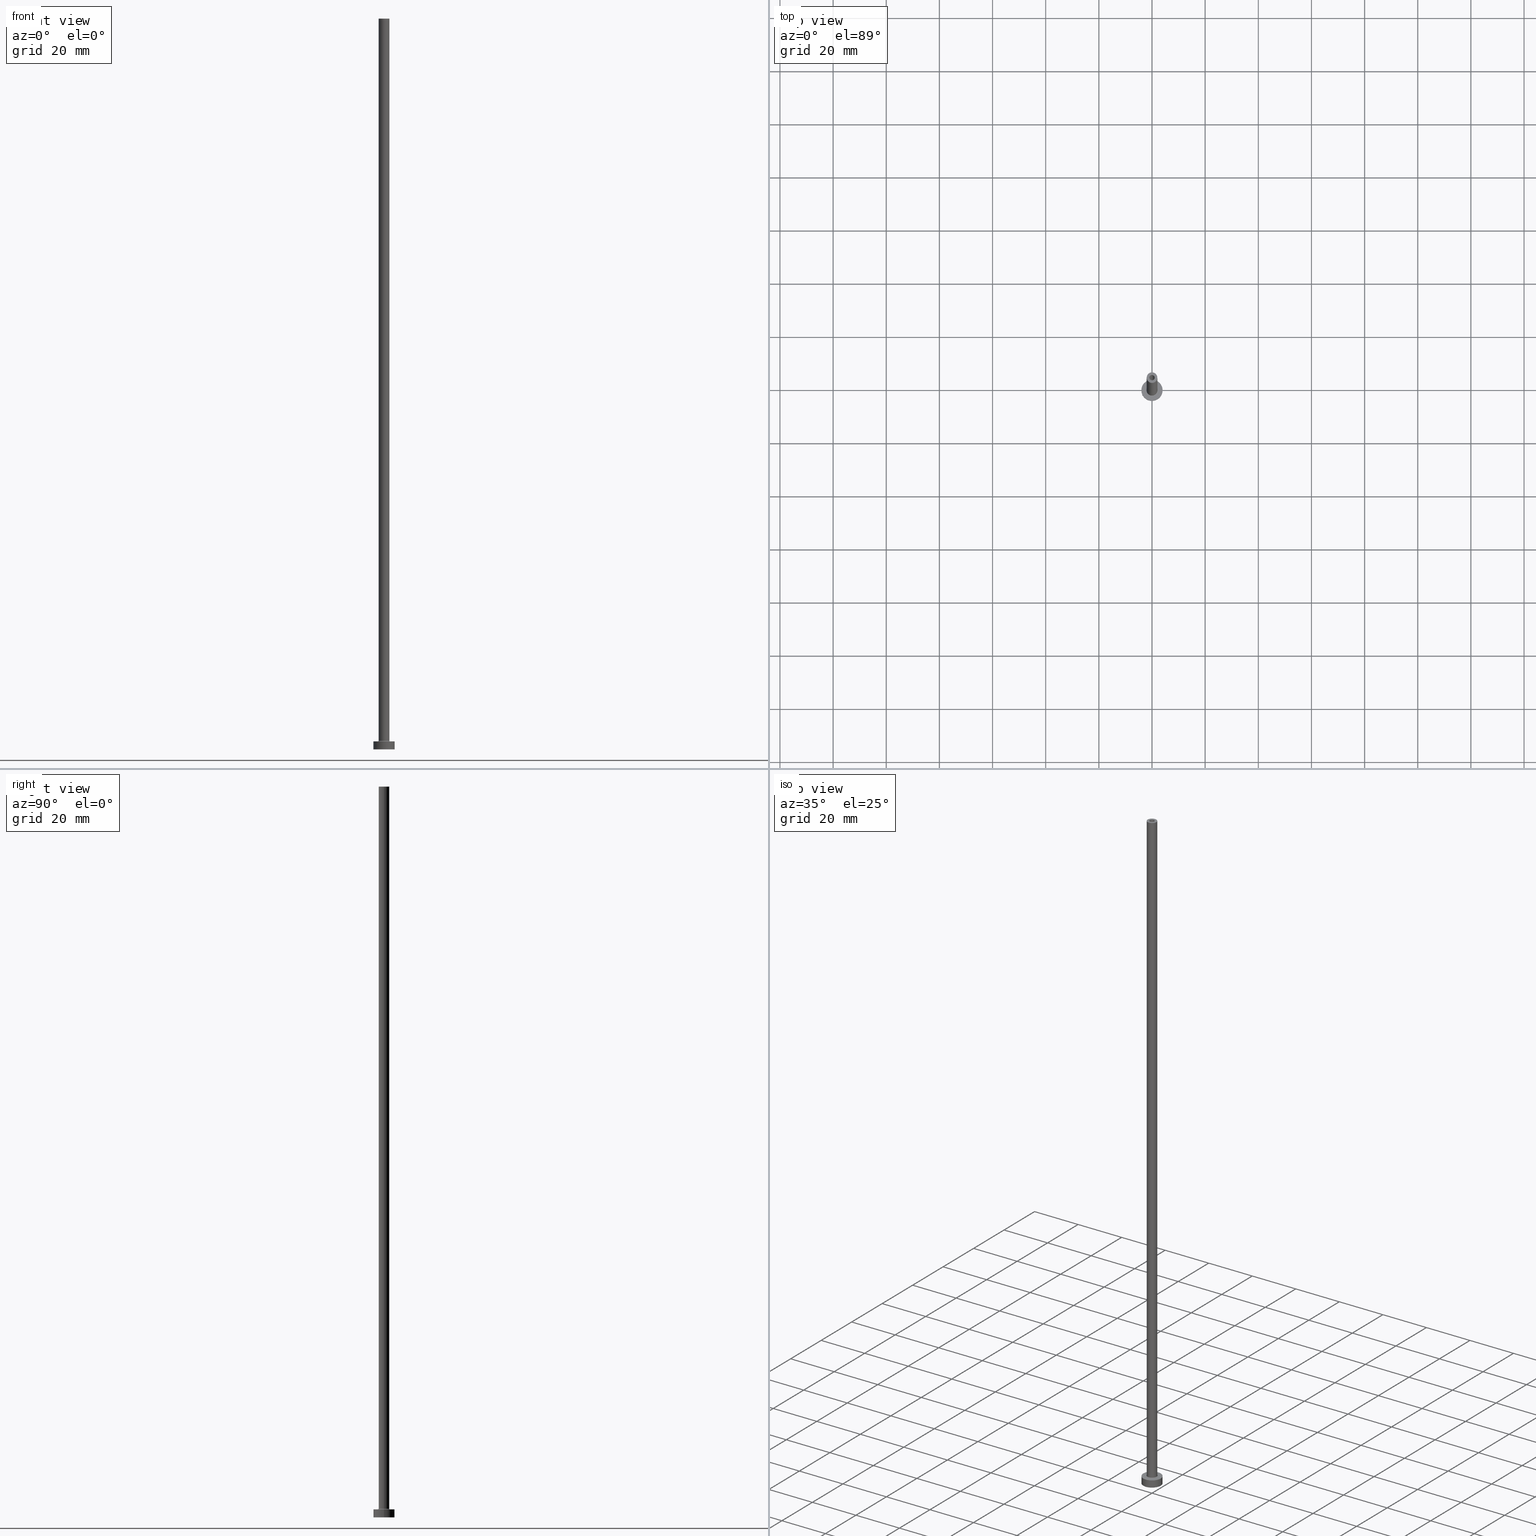
[diagram: canonical four-view strip — front | top / right | iso, engineering-drawing reading convention]
A machine part, canonical four-view strip (front | top / right | iso — engineering-drawing reading convention). The complete STEP part file that produces these views, byte-faithful:
ISO-10303-21;
HEADER;
FILE_DESCRIPTION (( 'STEP AP203' ),
    '1' );
FILE_NAME ('5d83.STEP',
    '2023-02-13T18:16:50',
    ( '' ),
    ( '' ),
    'SwSTEP 2.0',
    'SolidWorks 2019',
    '' );
FILE_SCHEMA (( 'CONFIG_CONTROL_DESIGN' ));
ENDSEC;

DATA;
#1 = AXIS2_PLACEMENT_3D ( 'NONE', #453, #115, #113 ) ;
#2 = EDGE_LOOP ( 'NONE', ( #135, #3 ) ) ;
#3 = ORIENTED_EDGE ( 'NONE', *, *, #459, .T. ) ;
#4 = ADVANCED_FACE ( 'NONE', ( #101 ), #95, .F. ) ;
#5 = SHAPE_DEFINITION_REPRESENTATION ( #7, #361 ) ;
#6 = DIRECTION ( 'NONE',  ( 0.000000000000000000, 0.000000000000000000, 1.000000000000000000 ) ) ;
#7 = PRODUCT_DEFINITION_SHAPE ( 'NONE', 'NONE',  #425 ) ;
#8 = DIRECTION ( 'NONE',  ( 1.000000000000000000, 0.000000000000000000, 0.000000000000000000 ) ) ;
#9 = DIRECTION ( 'NONE',  ( 1.000000000000000000, 0.000000000000000000, 0.000000000000000000 ) ) ;
#10 = EDGE_CURVE ( 'NONE', #313, #172, #398, .T. ) ;
#11 = DIRECTION ( 'NONE',  ( 0.000000000000000000, 0.000000000000000000, 1.000000000000000000 ) ) ;
#12 = COORDINATED_UNIVERSAL_TIME_OFFSET ( 1, 0, .AHEAD. ) ;
#13 = ORIENTED_EDGE ( 'NONE', *, *, #252, .F. ) ;
#14 = DIRECTION ( 'NONE',  ( 1.000000000000000000, 0.000000000000000000, 0.000000000000000000 ) ) ;
#15 = DIRECTION ( 'NONE',  ( 1.000000000000000000, 0.000000000000000000, 0.000000000000000000 ) ) ;
#16 = VERTEX_POINT ( 'NONE', #150 ) ;
#17 = APPROVAL_DATE_TIME ( #20, #211 ) ;
#18 = APPROVAL_PERSON_ORGANIZATION ( #216, #112, #214 ) ;
#19 = FACE_OUTER_BOUND ( 'NONE', #411, .T. ) ;
#20 = DATE_AND_TIME ( #89, #417 ) ;
#21 = DIRECTION ( 'NONE',  ( 0.000000000000000000, -1.000000000000000000, 0.000000000000000000 ) ) ;
#22 = EDGE_CURVE ( 'NONE', #395, #287, #254, .T. ) ;
#23 = VERTEX_POINT ( 'NONE', #461 ) ;
#24 = LINE ( 'NONE', #451, #331 ) ;
#25 = PERSON_AND_ORGANIZATION ( #178, #74 ) ;
#26 = ORIENTED_EDGE ( 'NONE', *, *, #110, .T. ) ;
#27 = DIRECTION ( 'NONE',  ( 0.000000000000000000, 0.000000000000000000, -1.000000000000000000 ) ) ;
#28 = ORIENTED_EDGE ( 'NONE', *, *, #379, .T. ) ;
#29 = LOCAL_TIME ( 19, 16, 50.00000000000000000, #108 ) ;
#30 = DIRECTION ( 'NONE',  ( -1.000000000000000000, 0.000000000000000000, 0.000000000000000000 ) ) ;
#31 = CARTESIAN_POINT ( 'NONE',  ( 2.299999999999999822, 0.000000000000000000, 3.000000000000012434 ) ) ;
#32 = ADVANCED_FACE ( 'NONE', ( #151 ), #111, .T. ) ;
#33 = DIRECTION ( 'NONE',  ( -1.000000000000000000, 0.000000000000000000, 0.000000000000000000 ) ) ;
#34 = DIRECTION ( 'NONE',  ( 0.000000000000000000, 0.000000000000000000, -1.000000000000000000 ) ) ;
#35 = VERTEX_POINT ( 'NONE', #68 ) ;
#36 = DIRECTION ( 'NONE',  ( 0.000000000000000000, 0.000000000000000000, 1.000000000000000000 ) ) ;
#37 = ORIENTED_EDGE ( 'NONE', *, *, #171, .T. ) ;
#38 = DIRECTION ( 'NONE',  ( 1.000000000000000000, 0.000000000000000000, 0.000000000000000000 ) ) ;
#39 = ORIENTED_EDGE ( 'NONE', *, *, #408, .T. ) ;
#40 = CC_DESIGN_PERSON_AND_ORGANIZATION_ASSIGNMENT ( #326, #219, ( #351 ) ) ;
#41 = PERSON_AND_ORGANIZATION ( #178, #74 ) ;
#42 = CALENDAR_DATE ( 2023, 13, 2 ) ;
#43 = AXIS2_PLACEMENT_3D ( 'NONE', #400, #52, #33 ) ;
#44 = CIRCLE ( 'NONE', #303, 0.2999999999999999334 ) ;
#45 = AXIS2_PLACEMENT_3D ( 'NONE', #190, #439, #343 ) ;
#46 = CARTESIAN_POINT ( 'NONE',  ( 0.000000000000000000, 0.000000000000000000, 3.000000000000000000 ) ) ;
#47 = ORIENTED_EDGE ( 'NONE', *, *, #200, .T. ) ;
#48 = LINE ( 'NONE', #369, #119 ) ;
#49 = EDGE_CURVE ( 'NONE', #287, #440, #396, .T. ) ;
#50 = ORIENTED_EDGE ( 'NONE', *, *, #78, .T. ) ;
#51 = ORIENTED_EDGE ( 'NONE', *, *, #286, .F. ) ;
#52 = DIRECTION ( 'NONE',  ( 0.000000000000000000, 0.000000000000000000, -1.000000000000000000 ) ) ;
#53 = LINE ( 'NONE', #161, #330 ) ;
#54 = DIRECTION ( 'NONE',  ( 0.000000000000000000, 0.000000000000000000, -1.000000000000000000 ) ) ;
#55 = CARTESIAN_POINT ( 'NONE',  ( 1.149999999999999911, 1.408343819019456028E-16, 0.000000000000000000 ) ) ;
#56 = CC_DESIGN_PERSON_AND_ORGANIZATION_ASSIGNMENT ( #25, #265, ( #83 ) ) ;
#57 = EDGE_LOOP ( 'NONE', ( #99, #251 ) ) ;
#58 = CARTESIAN_POINT ( 'NONE',  ( 0.000000000000000000, 0.000000000000000000, 243.2526911934581335 ) ) ;
#59 = DIRECTION ( 'NONE',  ( 1.000000000000000000, 0.000000000000000000, 0.000000000000000000 ) ) ;
#60 = DIRECTION ( 'NONE',  ( -1.000000000000000000, 0.000000000000000000, 0.000000000000000000 ) ) ;
#61 = ORIENTED_EDGE ( 'NONE', *, *, #277, .F. ) ;
#62 = ADVANCED_FACE ( 'NONE', ( #382 ), #387, .F. ) ;
#63 = LINE ( 'NONE', #341, #442 ) ;
#64 = AXIS2_PLACEMENT_3D ( 'NONE', #160, #339, #271 ) ;
#65 = DIRECTION ( 'NONE',  ( 1.000000000000000000, 0.000000000000000000, -0.000000000000000000 ) ) ;
#66 = AXIS2_PLACEMENT_3D ( 'NONE', #420, #149, #9 ) ;
#67 = CIRCLE ( 'NONE', #145, 2.299999999999999822 ) ;
#68 = CARTESIAN_POINT ( 'NONE',  ( -2.000000000000000000, 0.000000000000000000, 275.0000000000000000 ) ) ;
#69 = CARTESIAN_POINT ( 'NONE',  ( -2.000000000000000000, 0.000000000000000000, 275.0000000000000000 ) ) ;
#70 = VERTEX_POINT ( 'NONE', #202 ) ;
#71 = EDGE_LOOP ( 'NONE', ( #13, #300 ) ) ;
#72 = ORIENTED_EDGE ( 'NONE', *, *, #110, .F. ) ;
#73 = EDGE_CURVE ( 'NONE', #448, #359, #63, .T. ) ;
#74 = ORGANIZATION ( 'NEUR�EN�', 'NEUR�EN�', '' ) ;
#75 = CC_DESIGN_SECURITY_CLASSIFICATION ( #397, ( #351 ) ) ;
#76 =( LENGTH_UNIT ( ) NAMED_UNIT ( * ) SI_UNIT ( .MILLI., .METRE. ) );
#77 = AXIS2_PLACEMENT_3D ( 'NONE', #284, #107, #38 ) ;
#78 = EDGE_CURVE ( 'NONE', #454, #203, #243, .T. ) ;
#79 = CARTESIAN_POINT ( 'NONE',  ( -1.149999999999999911, 0.000000000000000000, 0.000000000000000000 ) ) ;
#80 = DIRECTION ( 'NONE',  ( 1.000000000000000000, 0.000000000000000000, 0.000000000000000000 ) ) ;
#81 = CIRCLE ( 'NONE', #153, 1.149999999999999911 ) ;
#82 = PERSON_AND_ORGANIZATION ( #178, #74 ) ;
#83 = PRODUCT ( '5d83', '5d83', '', ( #162 ) ) ;
#84 = DIRECTION ( 'NONE',  ( 1.000000000000000000, 0.000000000000000000, 0.000000000000000000 ) ) ;
#85 = DIRECTION ( 'NONE',  ( 0.000000000000000000, 0.000000000000000000, 1.000000000000000000 ) ) ;
#86 = DIRECTION ( 'NONE',  ( 1.000000000000000000, 0.000000000000000000, 0.000000000000000000 ) ) ;
#87 = FACE_BOUND ( 'NONE', #194, .T. ) ;
#88 = ADVANCED_FACE ( 'NONE', ( #128 ), #141, .T. ) ;
#89 = CALENDAR_DATE ( 2023, 13, 2 ) ;
#90 = ORIENTED_EDGE ( 'NONE', *, *, #408, .F. ) ;
#91 = DIRECTION ( 'NONE',  ( 1.000000000000000000, 0.000000000000000000, 0.000000000000000000 ) ) ;
#92 = CARTESIAN_POINT ( 'NONE',  ( 0.000000000000000000, 0.000000000000000000, 0.000000000000000000 ) ) ;
#93 = CARTESIAN_POINT ( 'NONE',  ( 0.000000000000000000, 0.000000000000000000, 0.000000000000000000 ) ) ;
#94 = ORIENTED_EDGE ( 'NONE', *, *, #130, .F. ) ;
#95 = TOROIDAL_SURFACE ( 'NONE', #77, 2.299999999999999822, 0.2999999999999999889 ) ;
#96 = CARTESIAN_POINT ( 'NONE',  ( 0.000000000000000000, 0.000000000000000000, 240.0000000000000284 ) ) ;
#97 = DATE_AND_TIME ( #282, #154 ) ;
#98 = FACE_OUTER_BOUND ( 'NONE', #421, .T. ) ;
#99 = ORIENTED_EDGE ( 'NONE', *, *, #10, .F. ) ;
#100 = DIRECTION ( 'NONE',  ( 1.000000000000000000, 0.000000000000000000, -0.000000000000000000 ) ) ;
#101 = FACE_OUTER_BOUND ( 'NONE', #415, .T. ) ;
#102 = AXIS2_PLACEMENT_3D ( 'NONE', #391, #36, #180 ) ;
#103 = LINE ( 'NONE', #69, #105 ) ;
#104 = ORIENTED_EDGE ( 'NONE', *, *, #291, .T. ) ;
#105 = VECTOR ( 'NONE', #212, 1000.000000000000000 ) ;
#106 = DATE_AND_TIME ( #418, #258 ) ;
#107 = DIRECTION ( 'NONE',  ( 0.000000000000000000, 0.000000000000000000, 1.000000000000000000 ) ) ;
#108 = COORDINATED_UNIVERSAL_TIME_OFFSET ( 1, 0, .AHEAD. ) ;
#109 = ORIENTED_EDGE ( 'NONE', *, *, #181, .F. ) ;
#110 = EDGE_CURVE ( 'NONE', #117, #313, #24, .T. ) ;
#111 = CYLINDRICAL_SURFACE ( 'NONE', #156, 2.000000000000000000 ) ;
#112 = APPROVAL ( #183, 'NEUR�EN�' ) ;
#113 = DIRECTION ( 'NONE',  ( 1.000000000000000000, 0.000000000000000000, 0.000000000000000000 ) ) ;
#114 = AXIS2_PLACEMENT_3D ( 'NONE', #92, #441, #86 ) ;
#115 = DIRECTION ( 'NONE',  ( 0.000000000000000000, 0.000000000000000000, 1.000000000000000000 ) ) ;
#116 = PRODUCT_RELATED_PRODUCT_CATEGORY ( 'detail', '', ( #83 ) ) ;
#117 = VERTEX_POINT ( 'NONE', #139 ) ;
#118 = CARTESIAN_POINT ( 'NONE',  ( 0.000000000000000000, 0.000000000000000000, 3.000000000000000000 ) ) ;
#119 = VECTOR ( 'NONE', #27, 1000.000000000000000 ) ;
#120 = CYLINDRICAL_SURFACE ( 'NONE', #247, 1.000000000000000000 ) ;
#121 = TOROIDAL_SURFACE ( 'NONE', #385, 2.299999999999999822, 0.2999999999999999889 ) ;
#122 = AXIS2_PLACEMENT_3D ( 'NONE', #373, #11, #8 ) ;
#123 = CARTESIAN_POINT ( 'NONE',  ( 0.000000000000000000, 0.000000000000000000, 275.0000000000000000 ) ) ;
#124 = DATE_AND_TIME ( #438, #168 ) ;
#125 = DIRECTION ( 'NONE',  ( 0.000000000000000000, 0.000000000000000000, 1.000000000000000000 ) ) ;
#126 = EDGE_LOOP ( 'NONE', ( #320, #109, #39, #217 ) ) ;
#127 = DIRECTION ( 'NONE',  ( 0.000000000000000000, 0.000000000000000000, 1.000000000000000000 ) ) ;
#128 = FACE_OUTER_BOUND ( 'NONE', #261, .T. ) ;
#129 = ORIENTED_EDGE ( 'NONE', *, *, #329, .F. ) ;
#130 = EDGE_CURVE ( 'NONE', #454, #448, #318, .T. ) ;
#131 = ORIENTED_EDGE ( 'NONE', *, *, #324, .F. ) ;
#132 = CARTESIAN_POINT ( 'NONE',  ( 1.149999999999999911, 1.408343819019456028E-16, 243.2526911934581335 ) ) ;
#133 = PERSON_AND_ORGANIZATION_ROLE ( 'classification_officer' ) ;
#134 = ORIENTED_EDGE ( 'NONE', *, *, #181, .T. ) ;
#135 = ORIENTED_EDGE ( 'NONE', *, *, #344, .T. ) ;
#136 = PLANE ( 'NONE',  #427 ) ;
#137 = EDGE_LOOP ( 'NONE', ( #342, #148, #26, #352 ) ) ;
#138 = AXIS2_PLACEMENT_3D ( 'NONE', #246, #155, #223 ) ;
#139 = CARTESIAN_POINT ( 'NONE',  ( -4.000000000000000000, 0.000000000000000000, 3.000000000000000000 ) ) ;
#140 = EDGE_LOOP ( 'NONE', ( #283, #158, #445, #192 ) ) ;
#141 = CYLINDRICAL_SURFACE ( 'NONE', #250, 4.000000000000000000 ) ;
#142 = COORDINATED_UNIVERSAL_TIME_OFFSET ( 1, 0, .AHEAD. ) ;
#143 = ORIENTED_EDGE ( 'NONE', *, *, #403, .T. ) ;
#144 = AXIS2_PLACEMENT_3D ( 'NONE', #431, #406, #80 ) ;
#145 = AXIS2_PLACEMENT_3D ( 'NONE', #167, #230, #84 ) ;
#146 = ADVANCED_FACE ( 'NONE', ( #278, #414 ), #446, .F. ) ;
#147 = CARTESIAN_POINT ( 'NONE',  ( -2.000000000000000000, 0.000000000000000000, 3.300000000000025135 ) ) ;
#148 = ORIENTED_EDGE ( 'NONE', *, *, #344, .F. ) ;
#149 = DIRECTION ( 'NONE',  ( 0.000000000000000000, 0.000000000000000000, 1.000000000000000000 ) ) ;
#150 = CARTESIAN_POINT ( 'NONE',  ( 1.000000000000000000, 1.224646799147353207E-16, 275.0000000000000000 ) ) ;
#151 = FACE_OUTER_BOUND ( 'NONE', #126, .T. ) ;
#152 = EDGE_CURVE ( 'NONE', #70, #450, #426, .T. ) ;
#153 = AXIS2_PLACEMENT_3D ( 'NONE', #436, #401, #228 ) ;
#154 = LOCAL_TIME ( 19, 16, 50.00000000000000000, #452 ) ;
#155 = DIRECTION ( 'NONE',  ( 0.000000000000000000, 0.000000000000000000, 1.000000000000000000 ) ) ;
#156 = AXIS2_PLACEMENT_3D ( 'NONE', #350, #345, #213 ) ;
#157 = ORIENTED_EDGE ( 'NONE', *, *, #242, .F. ) ;
#158 = ORIENTED_EDGE ( 'NONE', *, *, #130, .T. ) ;
#159 = ORIENTED_EDGE ( 'NONE', *, *, #291, .F. ) ;
#160 = CARTESIAN_POINT ( 'NONE',  ( -2.299999999999999822, 2.816687638038912056E-16, 3.300000000000025135 ) ) ;
#161 = CARTESIAN_POINT ( 'NONE',  ( -1.000000000000000000, 0.000000000000000000, 275.0000000000000000 ) ) ;
#162 = MECHANICAL_CONTEXT ( 'NONE', #358, 'mechanical' ) ;
#163 = ORIENTED_EDGE ( 'NONE', *, *, #403, .F. ) ;
#164 = CC_DESIGN_PERSON_AND_ORGANIZATION_ASSIGNMENT ( #288, #133, ( #397 ) ) ;
#165 = PLANE ( 'NONE',  #433 ) ;
#166 = CIRCLE ( 'NONE', #1, 4.000000000000000000 ) ;
#167 = CARTESIAN_POINT ( 'NONE',  ( 0.000000000000000000, 0.000000000000000000, 3.000000000000000000 ) ) ;
#168 = LOCAL_TIME ( 19, 16, 50.00000000000000000, #197 ) ;
#169 = VECTOR ( 'NONE', #34, 1000.000000000000000 ) ;
#170 = DIRECTION ( 'NONE',  ( 0.000000000000000000, 0.000000000000000000, -1.000000000000000000 ) ) ;
#171 = EDGE_CURVE ( 'NONE', #203, #359, #81, .T. ) ;
#172 = VERTEX_POINT ( 'NONE', #370 ) ;
#173 = FACE_OUTER_BOUND ( 'NONE', #381, .T. ) ;
#174 = APPLICATION_PROTOCOL_DEFINITION ( 'international standard', 'config_control_design', 1994, #409 ) ;
#175 = ORIENTED_EDGE ( 'NONE', *, *, #257, .F. ) ;
#176 = DIRECTION ( 'NONE',  ( 1.000000000000000000, 0.000000000000000000, -0.000000000000000000 ) ) ;
#177 = DIRECTION ( 'NONE',  ( -0.000000000000000000, -0.000000000000000000, -1.000000000000000000 ) ) ;
#178 = PERSON ( 'NEUR�EN�', 'NEUR�EN�', 'NEUR�EN�', ('NEUR�EN�'), ('NEUR�EN�'), ('NEUR�EN�') ) ;
#179 = APPROVAL_ROLE ( '' ) ;
#180 = DIRECTION ( 'NONE',  ( 1.000000000000000000, 0.000000000000000000, 0.000000000000000000 ) ) ;
#181 = EDGE_CURVE ( 'NONE', #35, #395, #349, .T. ) ;
#182 = ORIENTED_EDGE ( 'NONE', *, *, #332, .F. ) ;
#183 = APPROVAL_STATUS ( 'not_yet_approved' ) ;
#184 = AXIS2_PLACEMENT_3D ( 'NONE', #93, #376, #59 ) ;
#185 = ADVANCED_FACE ( 'NONE', ( #87, #173 ), #308, .F. ) ;
#186 = APPROVAL_DATE_TIME ( #106, #455 ) ;
#187 = AXIS2_PLACEMENT_3D ( 'NONE', #307, #127, #91 ) ;
#188 = CIRCLE ( 'NONE', #245, 4.000000000000000000 ) ;
#189 = CIRCLE ( 'NONE', #64, 0.2999999999999999334 ) ;
#190 = CARTESIAN_POINT ( 'NONE',  ( 0.000000000000000000, 0.000000000000000000, 3.000000000000000000 ) ) ;
#191 = DIRECTION ( 'NONE',  ( -0.000000000000000000, -0.000000000000000000, -1.000000000000000000 ) ) ;
#192 = ORIENTED_EDGE ( 'NONE', *, *, #252, .T. ) ;
#193 = DIRECTION ( 'NONE',  ( 1.000000000000000000, 0.000000000000000000, 0.000000000000000000 ) ) ;
#194 = EDGE_LOOP ( 'NONE', ( #423, #346 ) ) ;
#195 = ADVANCED_FACE ( 'NONE', ( #19 ), #121, .F. ) ;
#196 = CARTESIAN_POINT ( 'NONE',  ( 0.000000000000000000, 0.000000000000000000, 275.0000000000000000 ) ) ;
#197 = COORDINATED_UNIVERSAL_TIME_OFFSET ( 1, 0, .AHEAD. ) ;
#198 = AXIS2_PLACEMENT_3D ( 'NONE', #196, #335, #334 ) ;
#199 = LINE ( 'NONE', #232, #241 ) ;
#200 = EDGE_CURVE ( 'NONE', #172, #313, #188, .T. ) ;
#201 = DIRECTION ( 'NONE',  ( 0.000000000000000000, 0.000000000000000000, 1.000000000000000000 ) ) ;
#202 = CARTESIAN_POINT ( 'NONE',  ( -1.000000000000000000, 0.000000000000000000, 240.0000000000000284 ) ) ;
#203 = VERTEX_POINT ( 'NONE', #55 ) ;
#204 = VECTOR ( 'NONE', #365, 1000.000000000000000 ) ;
#205 = ORIENTED_EDGE ( 'NONE', *, *, #332, .T. ) ;
#206 = ORIENTED_EDGE ( 'NONE', *, *, #226, .F. ) ;
#207 = CARTESIAN_POINT ( 'NONE',  ( 1.149999999999999911, 1.408343819019456028E-16, 240.0000000000000284 ) ) ;
#208 = CC_DESIGN_APPROVAL ( #455, ( #397 ) ) ;
#209 = DIRECTION ( 'NONE',  ( -1.000000000000000000, 0.000000000000000000, 0.000000000000000000 ) ) ;
#210 = ORIENTED_EDGE ( 'NONE', *, *, #22, .T. ) ;
#211 = APPROVAL ( #371, 'NEUR�EN�' ) ;
#212 = DIRECTION ( 'NONE',  ( -0.000000000000000000, -0.000000000000000000, -1.000000000000000000 ) ) ;
#213 = DIRECTION ( 'NONE',  ( -1.000000000000000000, 0.000000000000000000, 0.000000000000000000 ) ) ;
#214 = APPROVAL_ROLE ( '' ) ;
#215 = CARTESIAN_POINT ( 'NONE',  ( 4.000000000000000000, 4.898587196589412829E-16, 3.000000000000000000 ) ) ;
#216 = PERSON_AND_ORGANIZATION ( #178, #74 ) ;
#217 = ORIENTED_EDGE ( 'NONE', *, *, #277, .T. ) ;
#218 = CC_DESIGN_PERSON_AND_ORGANIZATION_ASSIGNMENT ( #41, #325, ( #351 ) ) ;
#219 = PERSON_AND_ORGANIZATION_ROLE ( 'creator' ) ;
#220 = ORIENTED_EDGE ( 'NONE', *, *, #329, .T. ) ;
#221 = CLOSED_SHELL ( 'NONE', ( #306, #62, #4, #337, #88, #428, #394, #146, #32, #392, #195, #374, #185, #360 ) ) ;
#222 = CARTESIAN_POINT ( 'NONE',  ( 0.000000000000000000, 0.000000000000000000, 275.0000000000000000 ) ) ;
#223 = DIRECTION ( 'NONE',  ( 1.000000000000000000, 0.000000000000000000, 0.000000000000000000 ) ) ;
#224 = CIRCLE ( 'NONE', #144, 1.149999999999999911 ) ;
#225 = CIRCLE ( 'NONE', #388, 2.299999999999999822 ) ;
#226 = EDGE_CURVE ( 'NONE', #287, #458, #44, .T. ) ;
#227 = CC_DESIGN_DATE_AND_TIME_ASSIGNMENT ( #124, #270, ( #425 ) ) ;
#228 = DIRECTION ( 'NONE',  ( 1.000000000000000000, 0.000000000000000000, 0.000000000000000000 ) ) ;
#229 = PERSON_AND_ORGANIZATION_ROLE ( 'creator' ) ;
#230 = DIRECTION ( 'NONE',  ( -0.000000000000000000, -0.000000000000000000, -1.000000000000000000 ) ) ;
#231 = DIRECTION ( 'NONE',  ( 0.000000000000000000, 0.000000000000000000, -1.000000000000000000 ) ) ;
#232 = CARTESIAN_POINT ( 'NONE',  ( 4.000000000000000000, 4.898587196589412829E-16, 3.000000000000000000 ) ) ;
#233 = CARTESIAN_POINT ( 'NONE',  ( 0.000000000000000000, 0.000000000000000000, 3.300000000000025135 ) ) ;
#234 = MANIFOLD_SOLID_BREP ( 'Odebrat vysunut�m4', #221 ) ;
#235 = ORIENTED_EDGE ( 'NONE', *, *, #286, .T. ) ;
#236 = FACE_BOUND ( 'NONE', #279, .T. ) ;
#237 = ORIENTED_EDGE ( 'NONE', *, *, #226, .T. ) ;
#238 = PERSON_AND_ORGANIZATION ( #178, #74 ) ;
#239 = DESIGN_CONTEXT ( 'detailed design', #409, 'design' ) ;
#240 = DIRECTION ( 'NONE',  ( 0.000000000000000000, 0.000000000000000000, 1.000000000000000000 ) ) ;
#241 = VECTOR ( 'NONE', #404, 1000.000000000000000 ) ;
#242 = EDGE_CURVE ( 'NONE', #450, #70, #290, .T. ) ;
#243 = LINE ( 'NONE', #132, #169 ) ;
#244 = SECURITY_CLASSIFICATION_LEVEL ( 'unclassified' ) ;
#245 = AXIS2_PLACEMENT_3D ( 'NONE', #302, #201, #340 ) ;
#246 = CARTESIAN_POINT ( 'NONE',  ( 0.000000000000000000, 0.000000000000000000, 0.000000000000000000 ) ) ;
#247 = AXIS2_PLACEMENT_3D ( 'NONE', #375, #253, #386 ) ;
#248 = ORIENTED_EDGE ( 'NONE', *, *, #257, .T. ) ;
#249 = AXIS2_PLACEMENT_3D ( 'NONE', #309, #407, #354 ) ;
#250 = AXIS2_PLACEMENT_3D ( 'NONE', #319, #177, #209 ) ;
#251 = ORIENTED_EDGE ( 'NONE', *, *, #200, .F. ) ;
#252 = EDGE_CURVE ( 'NONE', #359, #203, #434, .T. ) ;
#253 = DIRECTION ( 'NONE',  ( 0.000000000000000000, 0.000000000000000000, -1.000000000000000000 ) ) ;
#254 = LINE ( 'NONE', #393, #204 ) ;
#255 = DIRECTION ( 'NONE',  ( 1.000000000000000000, 0.000000000000000000, 0.000000000000000000 ) ) ;
#256 = DIRECTION ( 'NONE',  ( 0.000000000000000000, 0.000000000000000000, 1.000000000000000000 ) ) ;
#257 = EDGE_CURVE ( 'NONE', #458, #422, #67, .T. ) ;
#258 = LOCAL_TIME ( 19, 16, 50.00000000000000000, #142 ) ;
#259 = AXIS2_PLACEMENT_3D ( 'NONE', #275, #412, #100 ) ;
#260 = EDGE_CURVE ( 'NONE', #317, #172, #199, .T. ) ;
#261 = EDGE_LOOP ( 'NONE', ( #292, #273, #47, #72 ) ) ;
#262 = CYLINDRICAL_SURFACE ( 'NONE', #45, 4.000000000000000000 ) ;
#263 = CYLINDRICAL_SURFACE ( 'NONE', #43, 1.149999999999999911 ) ;
#264 = CARTESIAN_POINT ( 'NONE',  ( 0.000000000000000000, 0.000000000000000000, 240.0000000000000284 ) ) ;
#265 = PERSON_AND_ORGANIZATION_ROLE ( 'design_owner' ) ;
#266 = CIRCLE ( 'NONE', #102, 1.000000000000000000 ) ;
#267 = FACE_OUTER_BOUND ( 'NONE', #323, .T. ) ;
#268 = CIRCLE ( 'NONE', #327, 2.000000000000000000 ) ;
#269 = DIRECTION ( 'NONE',  ( 1.000000000000000000, 0.000000000000000000, 0.000000000000000000 ) ) ;
#270 = DATE_TIME_ROLE ( 'creation_date' ) ;
#271 = DIRECTION ( 'NONE',  ( -1.000000000000000000, 1.224646799147353207E-16, 0.000000000000000000 ) ) ;
#272 = DIRECTION ( 'NONE',  ( 1.000000000000000000, 0.000000000000000000, 0.000000000000000000 ) ) ;
#273 = ORIENTED_EDGE ( 'NONE', *, *, #260, .T. ) ;
#274 = DIRECTION ( 'NONE',  ( -1.000000000000000000, 0.000000000000000000, 0.000000000000000000 ) ) ;
#275 = CARTESIAN_POINT ( 'NONE',  ( 0.000000000000000000, 0.000000000000000000, 0.000000000000000000 ) ) ;
#276 = ORIENTED_EDGE ( 'NONE', *, *, #294, .T. ) ;
#277 = EDGE_CURVE ( 'NONE', #440, #287, #304, .T. ) ;
#278 = FACE_BOUND ( 'NONE', #71, .T. ) ;
#279 = EDGE_LOOP ( 'NONE', ( #333, #163 ) ) ;
#280 = CARTESIAN_POINT ( 'NONE',  ( 2.000000000000000000, 2.449293598294706414E-16, 275.0000000000000000 ) ) ;
#281 =( GEOMETRIC_REPRESENTATION_CONTEXT ( 3 ) GLOBAL_UNCERTAINTY_ASSIGNED_CONTEXT ( ( #310 ) ) GLOBAL_UNIT_ASSIGNED_CONTEXT ( ( #76, #367, #368 ) ) REPRESENTATION_CONTEXT ( 'NONE', 'WORKASPACE' ) );
#282 = CALENDAR_DATE ( 2023, 13, 2 ) ;
#283 = ORIENTED_EDGE ( 'NONE', *, *, #78, .F. ) ;
#284 = CARTESIAN_POINT ( 'NONE',  ( 0.000000000000000000, 0.000000000000000000, 3.300000000000025135 ) ) ;
#285 = CC_DESIGN_APPROVAL ( #112, ( #351 ) ) ;
#286 = EDGE_CURVE ( 'NONE', #440, #422, #189, .T. ) ;
#287 = VERTEX_POINT ( 'NONE', #297 ) ;
#288 = PERSON_AND_ORGANIZATION ( #178, #74 ) ;
#289 = AXIS2_PLACEMENT_3D ( 'NONE', #96, #256, #15 ) ;
#290 = CIRCLE ( 'NONE', #187, 1.000000000000000000 ) ;
#291 = EDGE_CURVE ( 'NONE', #448, #454, #224, .T. ) ;
#292 = ORIENTED_EDGE ( 'NONE', *, *, #459, .F. ) ;
#293 = CIRCLE ( 'NONE', #322, 4.000000000000000000 ) ;
#294 = EDGE_CURVE ( 'NONE', #23, #70, #53, .T. ) ;
#295 = FACE_OUTER_BOUND ( 'NONE', #296, .T. ) ;
#296 = EDGE_LOOP ( 'NONE', ( #129, #210, #410, #90 ) ) ;
#297 = CARTESIAN_POINT ( 'NONE',  ( 2.000000000000000000, 2.449293598294706414E-16, 3.300000000000025135 ) ) ;
#298 = DIRECTION ( 'NONE',  ( 0.000000000000000000, 0.000000000000000000, 1.000000000000000000 ) ) ;
#299 = DIRECTION ( 'NONE',  ( 0.000000000000000000, 0.000000000000000000, -1.000000000000000000 ) ) ;
#300 = ORIENTED_EDGE ( 'NONE', *, *, #171, .F. ) ;
#301 = CARTESIAN_POINT ( 'NONE',  ( 0.000000000000000000, 0.000000000000000000, 275.0000000000000000 ) ) ;
#302 = CARTESIAN_POINT ( 'NONE',  ( 0.000000000000000000, 0.000000000000000000, 0.000000000000000000 ) ) ;
#303 = AXIS2_PLACEMENT_3D ( 'NONE', #338, #21, #170 ) ;
#304 = CIRCLE ( 'NONE', #122, 2.000000000000000000 ) ;
#305 = DIRECTION ( 'NONE',  ( 1.000000000000000000, 0.000000000000000000, -0.000000000000000000 ) ) ;
#306 = ADVANCED_FACE ( 'NONE', ( #432 ), #120, .F. ) ;
#307 = CARTESIAN_POINT ( 'NONE',  ( 0.000000000000000000, 0.000000000000000000, 240.0000000000000284 ) ) ;
#308 = PLANE ( 'NONE',  #328 ) ;
#309 = CARTESIAN_POINT ( 'NONE',  ( 0.000000000000000000, 0.000000000000000000, 240.0000000000000284 ) ) ;
#310 = UNCERTAINTY_MEASURE_WITH_UNIT (LENGTH_MEASURE( 1.000000000000000082E-05 ), #76, 'distance_accuracy_value', 'NONE');
#311 = CC_DESIGN_PERSON_AND_ORGANIZATION_ASSIGNMENT ( #443, #229, ( #425 ) ) ;
#312 = FACE_OUTER_BOUND ( 'NONE', #2, .T. ) ;
#313 = VERTEX_POINT ( 'NONE', #457 ) ;
#314 = APPROVAL_STATUS ( 'not_yet_approved' ) ;
#315 = EDGE_LOOP ( 'NONE', ( #248, #348 ) ) ;
#316 = FACE_OUTER_BOUND ( 'NONE', #140, .T. ) ;
#317 = VERTEX_POINT ( 'NONE', #215 ) ;
#318 = CIRCLE ( 'NONE', #249, 1.149999999999999911 ) ;
#319 = CARTESIAN_POINT ( 'NONE',  ( 0.000000000000000000, 0.000000000000000000, 3.000000000000000000 ) ) ;
#320 = ORIENTED_EDGE ( 'NONE', *, *, #22, .F. ) ;
#321 = CARTESIAN_POINT ( 'NONE',  ( -2.299999999999999822, 2.816687638038912056E-16, 3.000000000000012434 ) ) ;
#322 = AXIS2_PLACEMENT_3D ( 'NONE', #118, #298, #14 ) ;
#323 = EDGE_LOOP ( 'NONE', ( #182, #143, #276, #157 ) ) ;
#324 = EDGE_CURVE ( 'NONE', #422, #458, #225, .T. ) ;
#325 = PERSON_AND_ORGANIZATION_ROLE ( 'design_supplier' ) ;
#326 = PERSON_AND_ORGANIZATION ( #178, #74 ) ;
#327 = AXIS2_PLACEMENT_3D ( 'NONE', #222, #6, #193 ) ;
#328 = AXIS2_PLACEMENT_3D ( 'NONE', #264, #372, #305 ) ;
#329 = EDGE_CURVE ( 'NONE', #395, #35, #268, .T. ) ;
#330 = VECTOR ( 'NONE', #299, 1000.000000000000000 ) ;
#331 = VECTOR ( 'NONE', #416, 1000.000000000000000 ) ;
#332 = EDGE_CURVE ( 'NONE', #16, #450, #48, .T. ) ;
#333 = ORIENTED_EDGE ( 'NONE', *, *, #379, .F. ) ;
#334 = DIRECTION ( 'NONE',  ( 1.000000000000000000, 0.000000000000000000, 0.000000000000000000 ) ) ;
#335 = DIRECTION ( 'NONE',  ( 0.000000000000000000, 0.000000000000000000, 1.000000000000000000 ) ) ;
#336 = APPROVAL_PERSON_ORGANIZATION ( #82, #211, #405 ) ;
#337 = ADVANCED_FACE ( 'NONE', ( #295 ), #429, .T. ) ;
#338 = CARTESIAN_POINT ( 'NONE',  ( 2.299999999999999822, 0.000000000000000000, 3.300000000000025135 ) ) ;
#339 = DIRECTION ( 'NONE',  ( 1.224646799147353207E-16, 1.000000000000000000, -0.000000000000000000 ) ) ;
#340 = DIRECTION ( 'NONE',  ( 1.000000000000000000, 0.000000000000000000, 0.000000000000000000 ) ) ;
#341 = CARTESIAN_POINT ( 'NONE',  ( -1.149999999999999911, 0.000000000000000000, 243.2526911934581335 ) ) ;
#342 = ORIENTED_EDGE ( 'NONE', *, *, #260, .F. ) ;
#343 = DIRECTION ( 'NONE',  ( -1.000000000000000000, 0.000000000000000000, 0.000000000000000000 ) ) ;
#344 = EDGE_CURVE ( 'NONE', #117, #317, #293, .T. ) ;
#345 = DIRECTION ( 'NONE',  ( -0.000000000000000000, -0.000000000000000000, -1.000000000000000000 ) ) ;
#346 = ORIENTED_EDGE ( 'NONE', *, *, #242, .T. ) ;
#347 = DIRECTION ( 'NONE',  ( 0.000000000000000000, 0.000000000000000000, 1.000000000000000000 ) ) ;
#348 = ORIENTED_EDGE ( 'NONE', *, *, #324, .T. ) ;
#349 = CIRCLE ( 'NONE', #66, 2.000000000000000000 ) ;
#350 = CARTESIAN_POINT ( 'NONE',  ( 0.000000000000000000, 0.000000000000000000, 275.0000000000000000 ) ) ;
#351 = PRODUCT_DEFINITION_FORMATION_WITH_SPECIFIED_SOURCE ( 'LIBOVOLN�', '', #83, .NOT_KNOWN. ) ;
#352 = ORIENTED_EDGE ( 'NONE', *, *, #10, .T. ) ;
#353 = DIRECTION ( 'NONE',  ( -0.000000000000000000, -0.000000000000000000, -1.000000000000000000 ) ) ;
#354 = DIRECTION ( 'NONE',  ( 1.000000000000000000, 0.000000000000000000, 0.000000000000000000 ) ) ;
#355 = EDGE_LOOP ( 'NONE', ( #28, #205, #430, #399 ) ) ;
#356 = CC_DESIGN_DATE_AND_TIME_ASSIGNMENT ( #97, #389, ( #397 ) ) ;
#357 = APPROVAL_DATE_TIME ( #424, #112 ) ;
#358 = APPLICATION_CONTEXT ( 'configuration controlled 3d designs of mechanical parts and assemblies' ) ;
#359 = VERTEX_POINT ( 'NONE', #79 ) ;
#360 = ADVANCED_FACE ( 'NONE', ( #267 ), #384, .F. ) ;
#361 = ADVANCED_BREP_SHAPE_REPRESENTATION ( '5d83', ( #234, #184 ), #281 ) ;
#362 = AXIS2_PLACEMENT_3D ( 'NONE', #123, #353, #274 ) ;
#363 = CC_DESIGN_APPROVAL ( #211, ( #425 ) ) ;
#364 = FACE_OUTER_BOUND ( 'NONE', #137, .T. ) ;
#365 = DIRECTION ( 'NONE',  ( -0.000000000000000000, -0.000000000000000000, -1.000000000000000000 ) ) ;
#366 = AXIS2_PLACEMENT_3D ( 'NONE', #58, #231, #30 ) ;
#367 =( NAMED_UNIT ( * ) PLANE_ANGLE_UNIT ( ) SI_UNIT ( $, .RADIAN. ) );
#368 =( NAMED_UNIT ( * ) SI_UNIT ( $, .STERADIAN. ) SOLID_ANGLE_UNIT ( ) );
#369 = CARTESIAN_POINT ( 'NONE',  ( 1.000000000000000000, 1.224646799147353207E-16, 275.0000000000000000 ) ) ;
#370 = CARTESIAN_POINT ( 'NONE',  ( 4.000000000000000000, 4.898587196589412829E-16, 0.000000000000000000 ) ) ;
#371 = APPROVAL_STATUS ( 'not_yet_approved' ) ;
#372 = DIRECTION ( 'NONE',  ( 0.000000000000000000, 0.000000000000000000, 1.000000000000000000 ) ) ;
#373 = CARTESIAN_POINT ( 'NONE',  ( 0.000000000000000000, 0.000000000000000000, 3.300000000000025135 ) ) ;
#374 = ADVANCED_FACE ( 'NONE', ( #316 ), #263, .F. ) ;
#375 = CARTESIAN_POINT ( 'NONE',  ( 0.000000000000000000, 0.000000000000000000, 275.0000000000000000 ) ) ;
#376 = DIRECTION ( 'NONE',  ( 0.000000000000000000, 0.000000000000000000, 1.000000000000000000 ) ) ;
#377 = AXIS2_PLACEMENT_3D ( 'NONE', #301, #54, #60 ) ;
#378 = ORIENTED_EDGE ( 'NONE', *, *, #73, .F. ) ;
#379 = EDGE_CURVE ( 'NONE', #23, #16, #402, .T. ) ;
#380 = CARTESIAN_POINT ( 'NONE',  ( 0.000000000000000000, 0.000000000000000000, 275.0000000000000000 ) ) ;
#381 = EDGE_LOOP ( 'NONE', ( #159, #94 ) ) ;
#382 = FACE_OUTER_BOUND ( 'NONE', #437, .T. ) ;
#383 = CARTESIAN_POINT ( 'NONE',  ( 1.000000000000000000, 1.224646799147353207E-16, 240.0000000000000284 ) ) ;
#384 = CYLINDRICAL_SURFACE ( 'NONE', #377, 1.000000000000000000 ) ;
#385 = AXIS2_PLACEMENT_3D ( 'NONE', #435, #85, #269 ) ;
#386 = DIRECTION ( 'NONE',  ( -1.000000000000000000, 0.000000000000000000, 0.000000000000000000 ) ) ;
#387 = CYLINDRICAL_SURFACE ( 'NONE', #366, 1.149999999999999911 ) ;
#388 = AXIS2_PLACEMENT_3D ( 'NONE', #46, #191, #255 ) ;
#389 = DATE_TIME_ROLE ( 'classification_date' ) ;
#390 = ORIENTED_EDGE ( 'NONE', *, *, #49, .F. ) ;
#391 = CARTESIAN_POINT ( 'NONE',  ( 0.000000000000000000, 0.000000000000000000, 275.0000000000000000 ) ) ;
#392 = ADVANCED_FACE ( 'NONE', ( #236, #98 ), #165, .T. ) ;
#393 = CARTESIAN_POINT ( 'NONE',  ( 2.000000000000000000, 2.449293598294706414E-16, 275.0000000000000000 ) ) ;
#394 = ADVANCED_FACE ( 'NONE', ( #449, #312 ), #136, .T. ) ;
#395 = VERTEX_POINT ( 'NONE', #280 ) ;
#396 = CIRCLE ( 'NONE', #460, 2.000000000000000000 ) ;
#397 = SECURITY_CLASSIFICATION ( '', '', #244 ) ;
#398 = CIRCLE ( 'NONE', #138, 4.000000000000000000 ) ;
#399 = ORIENTED_EDGE ( 'NONE', *, *, #294, .F. ) ;
#400 = CARTESIAN_POINT ( 'NONE',  ( 0.000000000000000000, 0.000000000000000000, 243.2526911934581335 ) ) ;
#401 = DIRECTION ( 'NONE',  ( -0.000000000000000000, -0.000000000000000000, -1.000000000000000000 ) ) ;
#402 = CIRCLE ( 'NONE', #198, 1.000000000000000000 ) ;
#403 = EDGE_CURVE ( 'NONE', #16, #23, #266, .T. ) ;
#404 = DIRECTION ( 'NONE',  ( -0.000000000000000000, -0.000000000000000000, -1.000000000000000000 ) ) ;
#405 = APPROVAL_ROLE ( '' ) ;
#406 = DIRECTION ( 'NONE',  ( 0.000000000000000000, 0.000000000000000000, 1.000000000000000000 ) ) ;
#407 = DIRECTION ( 'NONE',  ( 0.000000000000000000, 0.000000000000000000, 1.000000000000000000 ) ) ;
#408 = EDGE_CURVE ( 'NONE', #35, #440, #103, .T. ) ;
#409 = APPLICATION_CONTEXT ( 'configuration controlled 3d designs of mechanical parts and assemblies' ) ;
#410 = ORIENTED_EDGE ( 'NONE', *, *, #49, .T. ) ;
#411 = EDGE_LOOP ( 'NONE', ( #51, #390, #237, #131 ) ) ;
#412 = DIRECTION ( 'NONE',  ( 0.000000000000000000, 0.000000000000000000, 1.000000000000000000 ) ) ;
#413 = CARTESIAN_POINT ( 'NONE',  ( 0.000000000000000000, 0.000000000000000000, 3.000000000000000000 ) ) ;
#414 = FACE_OUTER_BOUND ( 'NONE', #57, .T. ) ;
#415 = EDGE_LOOP ( 'NONE', ( #61, #235, #175, #206 ) ) ;
#416 = DIRECTION ( 'NONE',  ( -0.000000000000000000, -0.000000000000000000, -1.000000000000000000 ) ) ;
#417 = LOCAL_TIME ( 19, 16, 50.00000000000000000, #12 ) ;
#418 = CALENDAR_DATE ( 2023, 13, 2 ) ;
#419 = CARTESIAN_POINT ( 'NONE',  ( -1.149999999999999911, 0.000000000000000000, 240.0000000000000284 ) ) ;
#420 = CARTESIAN_POINT ( 'NONE',  ( 0.000000000000000000, 0.000000000000000000, 275.0000000000000000 ) ) ;
#421 = EDGE_LOOP ( 'NONE', ( #134, #220 ) ) ;
#422 = VERTEX_POINT ( 'NONE', #321 ) ;
#423 = ORIENTED_EDGE ( 'NONE', *, *, #152, .T. ) ;
#424 = DATE_AND_TIME ( #42, #29 ) ;
#425 = PRODUCT_DEFINITION ( 'NEZN�M�', '', #351, #239 ) ;
#426 = CIRCLE ( 'NONE', #289, 1.000000000000000000 ) ;
#427 = AXIS2_PLACEMENT_3D ( 'NONE', #413, #240, #65 ) ;
#428 = ADVANCED_FACE ( 'NONE', ( #364 ), #262, .T. ) ;
#429 = CYLINDRICAL_SURFACE ( 'NONE', #362, 2.000000000000000000 ) ;
#430 = ORIENTED_EDGE ( 'NONE', *, *, #152, .F. ) ;
#431 = CARTESIAN_POINT ( 'NONE',  ( 0.000000000000000000, 0.000000000000000000, 240.0000000000000284 ) ) ;
#432 = FACE_OUTER_BOUND ( 'NONE', #355, .T. ) ;
#433 = AXIS2_PLACEMENT_3D ( 'NONE', #380, #347, #176 ) ;
#434 = CIRCLE ( 'NONE', #114, 1.149999999999999911 ) ;
#435 = CARTESIAN_POINT ( 'NONE',  ( 0.000000000000000000, 0.000000000000000000, 3.300000000000025135 ) ) ;
#436 = CARTESIAN_POINT ( 'NONE',  ( 0.000000000000000000, 0.000000000000000000, 0.000000000000000000 ) ) ;
#437 = EDGE_LOOP ( 'NONE', ( #104, #50, #37, #378 ) ) ;
#438 = CALENDAR_DATE ( 2023, 13, 2 ) ;
#439 = DIRECTION ( 'NONE',  ( -0.000000000000000000, -0.000000000000000000, -1.000000000000000000 ) ) ;
#440 = VERTEX_POINT ( 'NONE', #147 ) ;
#441 = DIRECTION ( 'NONE',  ( -0.000000000000000000, -0.000000000000000000, -1.000000000000000000 ) ) ;
#442 = VECTOR ( 'NONE', #444, 1000.000000000000000 ) ;
#443 = PERSON_AND_ORGANIZATION ( #178, #74 ) ;
#444 = DIRECTION ( 'NONE',  ( 0.000000000000000000, 0.000000000000000000, -1.000000000000000000 ) ) ;
#445 = ORIENTED_EDGE ( 'NONE', *, *, #73, .T. ) ;
#446 = PLANE ( 'NONE',  #259 ) ;
#447 = APPLICATION_PROTOCOL_DEFINITION ( 'international standard', 'config_control_design', 1994, #358 ) ;
#448 = VERTEX_POINT ( 'NONE', #419 ) ;
#449 = FACE_BOUND ( 'NONE', #315, .T. ) ;
#450 = VERTEX_POINT ( 'NONE', #383 ) ;
#451 = CARTESIAN_POINT ( 'NONE',  ( -4.000000000000000000, 0.000000000000000000, 3.000000000000000000 ) ) ;
#452 = COORDINATED_UNIVERSAL_TIME_OFFSET ( 1, 0, .AHEAD. ) ;
#453 = CARTESIAN_POINT ( 'NONE',  ( 0.000000000000000000, 0.000000000000000000, 3.000000000000000000 ) ) ;
#454 = VERTEX_POINT ( 'NONE', #207 ) ;
#455 = APPROVAL ( #314, 'NEUR�EN�' ) ;
#456 = APPROVAL_PERSON_ORGANIZATION ( #238, #455, #179 ) ;
#457 = CARTESIAN_POINT ( 'NONE',  ( -4.000000000000000000, 0.000000000000000000, 0.000000000000000000 ) ) ;
#458 = VERTEX_POINT ( 'NONE', #31 ) ;
#459 = EDGE_CURVE ( 'NONE', #317, #117, #166, .T. ) ;
#460 = AXIS2_PLACEMENT_3D ( 'NONE', #233, #125, #272 ) ;
#461 = CARTESIAN_POINT ( 'NONE',  ( -1.000000000000000000, 0.000000000000000000, 275.0000000000000000 ) ) ;
ENDSEC;
END-ISO-10303-21;
